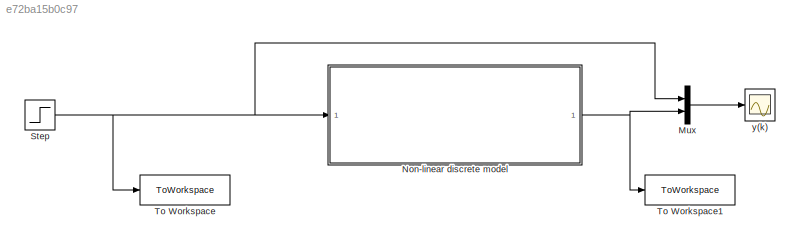
MODEL slx_e72ba15b0c97
KIND model
CONFIG AbsTol = auto
CONFIG EnableMultiTasking = off
CONFIG FixedStep = auto
CONFIG MaxStep = auto
CONFIG MinStep = auto
CONFIG RelTol = 1e-3
CONFIG SampleTimeConstraint = Unconstrained
CONFIG SolverName = VariableStepAuto
CONFIG StartTime = 0.0
CONFIG StopTime = t_fin
BLOCK [Mux] Mux
  DisplayOption = bar
  Inputs = 2
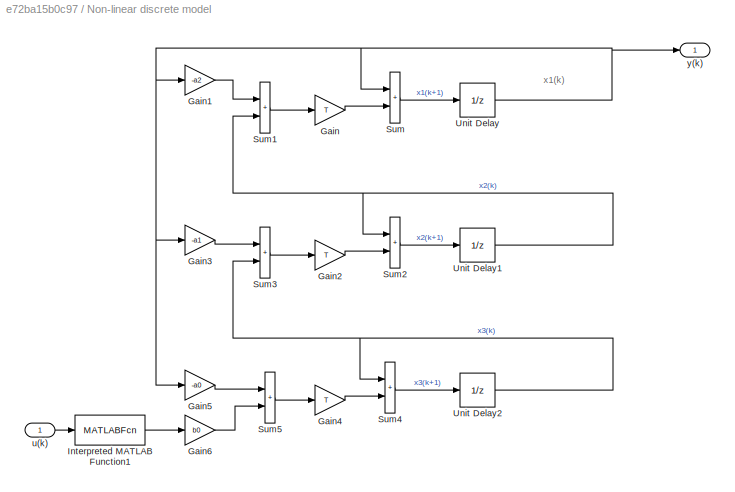
BLOCK [SubSystem] Non-linear discrete model
BLOCK [Gain] Non-linear discrete model/Gain
  Gain = T
BLOCK [Gain] Non-linear discrete model/Gain1
  Gain = -a2
BLOCK [Gain] Non-linear discrete model/Gain2
  Gain = T
BLOCK [Gain] Non-linear discrete model/Gain3
  Gain = -a1
BLOCK [Gain] Non-linear discrete model/Gain4
  Gain = T
BLOCK [Gain] Non-linear discrete model/Gain5
  Gain = -a0
BLOCK [Gain] Non-linear discrete model/Gain6
  Gain = b0
BLOCK [MATLABFcn] Non-linear discrete model/Interpreted MATLAB Function1
  MATLABFcn = (alpha1*u + alpha2*u^2 + alpha3*u^3 + alpha4*u^4)
BLOCK [Sum] Non-linear discrete model/Sum
  IconShape = rectangular
BLOCK [Sum] Non-linear discrete model/Sum1
  IconShape = rectangular
BLOCK [Sum] Non-linear discrete model/Sum2
  IconShape = rectangular
BLOCK [Sum] Non-linear discrete model/Sum3
  IconShape = rectangular
BLOCK [Sum] Non-linear discrete model/Sum4
  IconShape = rectangular
BLOCK [Sum] Non-linear discrete model/Sum5
  IconShape = rectangular
BLOCK [UnitDelay] Non-linear discrete model/Unit Delay
  HasFrameUpgradeWarning = on
  SampleTime = T
BLOCK [UnitDelay] Non-linear discrete model/Unit Delay1
  HasFrameUpgradeWarning = on
  SampleTime = T
BLOCK [UnitDelay] Non-linear discrete model/Unit Delay2
  HasFrameUpgradeWarning = on
  SampleTime = T
BLOCK [Inport] Non-linear discrete model/u(k)
BLOCK [Outport] Non-linear discrete model/y(k)
BLOCK [Step] Step
  After = u_max
  Before = u_min
  SampleTime = 0
  Time = u_step_time
BLOCK [ToWorkspace] To Workspace
  FixptAsFi = on
  MaxDataPoints = inf
  SampleTime = -1
  SaveFormat = Timeseries
  VariableName = u_discrete
BLOCK [ToWorkspace] To Workspace1
  FixptAsFi = on
  MaxDataPoints = inf
  SampleTime = -1
  SaveFormat = Timeseries
  VariableName = y_discrete
BLOCK [Scope] y(k)
  Floating = off
  NumInputPorts = 1
  ScopeSpecificationString = Simulink.scopes.TimeScopeBlockCfg('CurrentConfiguration', extmgr.ConfigurationSet(extmgr.Configuration('Core','General UI',true),extmgr.Configuration('Core','Source UI',true),extmgr.Configuration('Sources','WiredSimulink',true),extmgr.Configuration('Visuals','Time Domain',true,'SerializedDisplays',{struct('MinYLimReal','-0.2295','MaxYLimReal','0.0255','YLabelReal','','MinYLimMag','0.00000','MaxYLi...<+1368ch>
ANNOTATION Non-linear discrete model: x1(k)
LINE Mux:1 -> y(k):1
LINE Non-linear discrete model/Gain1:1 -> Non-linear discrete model/Sum1:1
LINE Non-linear discrete model/Gain2:1 -> Non-linear discrete model/Sum2:2
LINE Non-linear discrete model/Gain3:1 -> Non-linear discrete model/Sum3:1
LINE Non-linear discrete model/Gain4:1 -> Non-linear discrete model/Sum4:2
LINE Non-linear discrete model/Gain5:1 -> Non-linear discrete model/Sum5:1
LINE Non-linear discrete model/Gain6:1 -> Non-linear discrete model/Sum5:2
LINE Non-linear discrete model/Gain:1 -> Non-linear discrete model/Sum:2
LINE Non-linear discrete model/Interpreted MATLAB Function1:1 -> Non-linear discrete model/Gain6:1
LINE Non-linear discrete model/Sum1:1 -> Non-linear discrete model/Gain:1
LINE Non-linear discrete model/Sum2:1 -> Non-linear discrete model/Unit Delay1:1
LINE Non-linear discrete model/Sum3:1 -> Non-linear discrete model/Gain2:1
LINE Non-linear discrete model/Sum4:1 -> Non-linear discrete model/Unit Delay2:1
LINE Non-linear discrete model/Sum5:1 -> Non-linear discrete model/Gain4:1
LINE Non-linear discrete model/Sum:1 -> Non-linear discrete model/Unit Delay:1
NET Non-linear discrete model/Unit Delay1:1 -> Non-linear discrete model/Sum1:2, Non-linear discrete model/Sum2:1
NET Non-linear discrete model/Unit Delay2:1 -> Non-linear discrete model/Sum3:2, Non-linear discrete model/Sum4:1
NET Non-linear discrete model/Unit Delay:1 -> Non-linear discrete model/Gain1:1, Non-linear discrete model/Gain3:1, Non-linear discrete model/Gain5:1, Non-linear discrete model/Sum:1, Non-linear discrete model/y(k):1
LINE Non-linear discrete model/u(k):1 -> Non-linear discrete model/Interpreted MATLAB Function1:1
NET Non-linear discrete model:1 -> Mux:2, To Workspace1:1
NET Step:1 -> Mux:1, Non-linear discrete model:1, To Workspace:1
note: NET lines group one-source signal fan-out (src -> all destinations, sorted); 1:1 wires keep LINE
